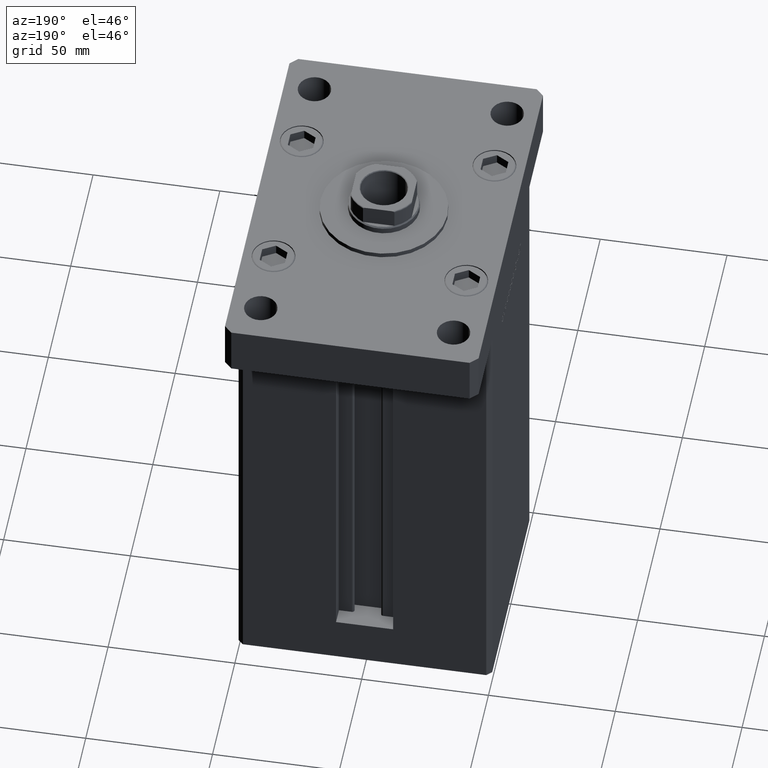
[diagram: clean part render]
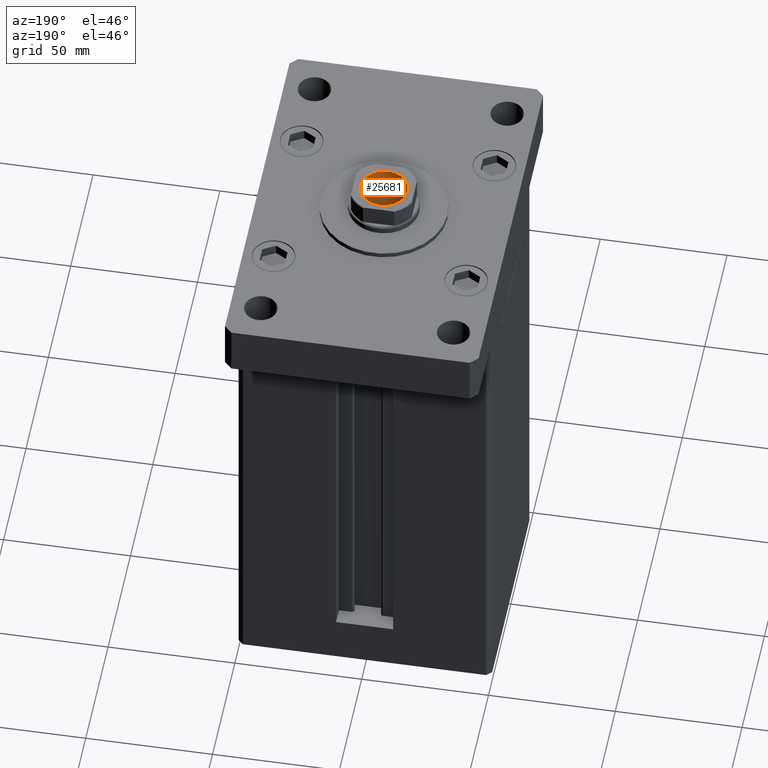
[diagram: same view with one face highlighted and labeled with its STEP entity id]
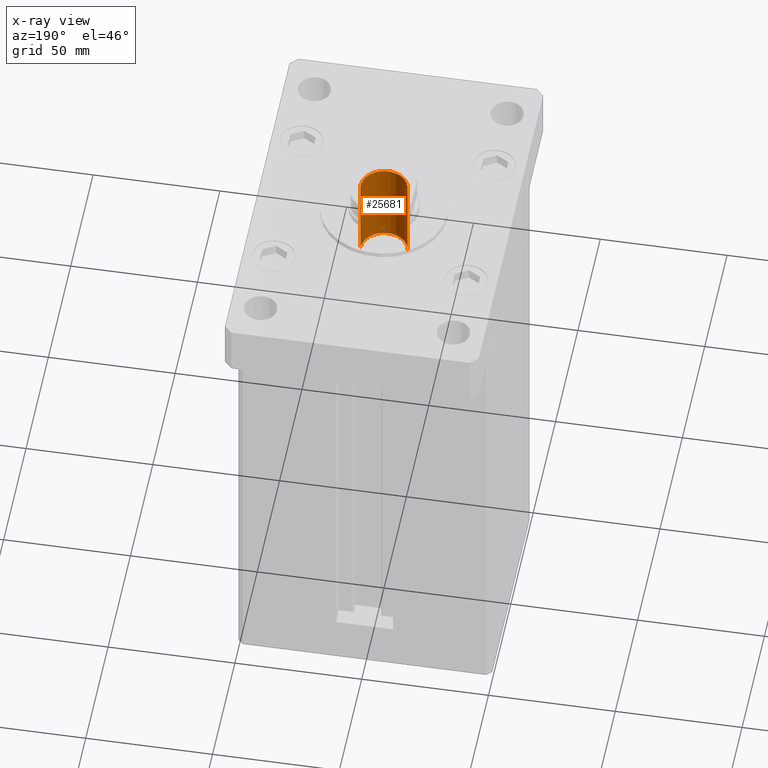
[diagram: x-ray of the same camera — body ghosted, the highlighted face saturated]
A machine part, auxiliary view. The second image highlights one B-rep face of the part: STEP entity #25681.
The next image is the same camera in x-ray: the body ghosted, the highlighted face saturated — about 3% of this face is hidden behind the body in this view.
In plain terms, the highlighted cylindrical surface (edge-blend (fillet) strip) has radius 9.25 mm, axis along (0, 0, 1).
Its self-contained STEP definition (entity closure, byte-faithful):
#346 = VECTOR ( 'NONE', #42013, 1000.000000000000000 ) ;
#1435 = CYLINDRICAL_SURFACE ( 'NONE', #22190, 9.249999999999996447 ) ;
#2720 = DIRECTION ( 'NONE',  ( -0.000000000000000000, -0.000000000000000000, 1.000000000000000000 ) ) ;
#10441 = CARTESIAN_POINT ( 'NONE',  ( 0.000000000000000000, 0.000000000000000000, 185.2500000000000000 ) ) ;
#12586 = LINE ( 'NONE', #17993, #33043 ) ;
#12866 = CARTESIAN_POINT ( 'NONE',  ( -9.249999999999996447, 1.132798289211301304E-15, 185.2500000000000000 ) ) ;
#17206 = LINE ( 'NONE', #12866, #346 ) ;
#17993 = CARTESIAN_POINT ( 'NONE',  ( 9.249999999999996447, 0.000000000000000000, 185.2500000000000000 ) ) ;
#19990 = CARTESIAN_POINT ( 'NONE',  ( 0.000000000000000000, 0.000000000000000000, 184.9499999999999602 ) ) ;
#20261 = DIRECTION ( 'NONE',  ( 0.000000000000000000, 0.000000000000000000, 1.000000000000000000 ) ) ;
#20288 = CARTESIAN_POINT ( 'NONE',  ( -9.249999999999994671, 1.132798289211300909E-15, 150.2500000000000000 ) ) ;
#20580 = CARTESIAN_POINT ( 'NONE',  ( 9.249999999999994671, 0.000000000000000000, 150.2500000000000000 ) ) ;
#22190 = AXIS2_PLACEMENT_3D ( 'NONE', #10441, #27069, #51334 ) ;
#22899 = CARTESIAN_POINT ( 'NONE',  ( 0.000000000000000000, 0.000000000000000000, 150.2500000000000000 ) ) ;
#23543 = DIRECTION ( 'NONE',  ( 1.000000000000000000, 0.000000000000000000, 0.000000000000000000 ) ) ;
#24537 = VERTEX_POINT ( 'NONE', #29062 ) ;
#25379 = DIRECTION ( 'NONE',  ( -0.000000000000000000, -0.000000000000000000, 1.000000000000000000 ) ) ;
#25477 = CARTESIAN_POINT ( 'NONE',  ( -9.249999999999996447, 1.132798289211301304E-15, 184.9499999999999602 ) ) ;
#25632 = ORIENTED_EDGE ( 'NONE', *, *, #53401, .F. ) ;
#25681 = ADVANCED_FACE ( 'NONE', ( #38780 ), #1435, .F. ) ;
#26717 = DIRECTION ( 'NONE',  ( 1.000000000000000000, 0.000000000000000000, 0.000000000000000000 ) ) ;
#27069 = DIRECTION ( 'NONE',  ( -0.000000000000000000, -0.000000000000000000, 1.000000000000000000 ) ) ;
#28439 = EDGE_CURVE ( 'NONE', #47544, #36964, #50987, .T. ) ;
#29062 = CARTESIAN_POINT ( 'NONE',  ( 9.249999999999996447, 0.000000000000000000, 184.9499999999999602 ) ) ;
#32965 = ORIENTED_EDGE ( 'NONE', *, *, #38683, .T. ) ;
#33043 = VECTOR ( 'NONE', #25379, 1000.000000000000000 ) ;
#34025 = ORIENTED_EDGE ( 'NONE', *, *, #28439, .F. ) ;
#35286 = AXIS2_PLACEMENT_3D ( 'NONE', #19990, #20261, #23543 ) ;
#35391 = EDGE_CURVE ( 'NONE', #47544, #50460, #17206, .T. ) ;
#36964 = VERTEX_POINT ( 'NONE', #20580 ) ;
#38683 = EDGE_CURVE ( 'NONE', #50460, #24537, #46622, .T. ) ;
#38780 = FACE_OUTER_BOUND ( 'NONE', #50410, .T. ) ;
#42013 = DIRECTION ( 'NONE',  ( -0.000000000000000000, -0.000000000000000000, 1.000000000000000000 ) ) ;
#46621 = AXIS2_PLACEMENT_3D ( 'NONE', #22899, #2720, #26717 ) ;
#46622 = CIRCLE ( 'NONE', #35286, 9.249999999999996447 ) ;
#47544 = VERTEX_POINT ( 'NONE', #20288 ) ;
#49117 = ORIENTED_EDGE ( 'NONE', *, *, #35391, .T. ) ;
#50410 = EDGE_LOOP ( 'NONE', ( #34025, #49117, #32965, #25632 ) ) ;
#50460 = VERTEX_POINT ( 'NONE', #25477 ) ;
#50987 = CIRCLE ( 'NONE', #46621, 9.249999999999994671 ) ;
#51334 = DIRECTION ( 'NONE',  ( 1.000000000000000000, 0.000000000000000000, 0.000000000000000000 ) ) ;
#53401 = EDGE_CURVE ( 'NONE', #36964, #24537, #12586, .T. ) ;